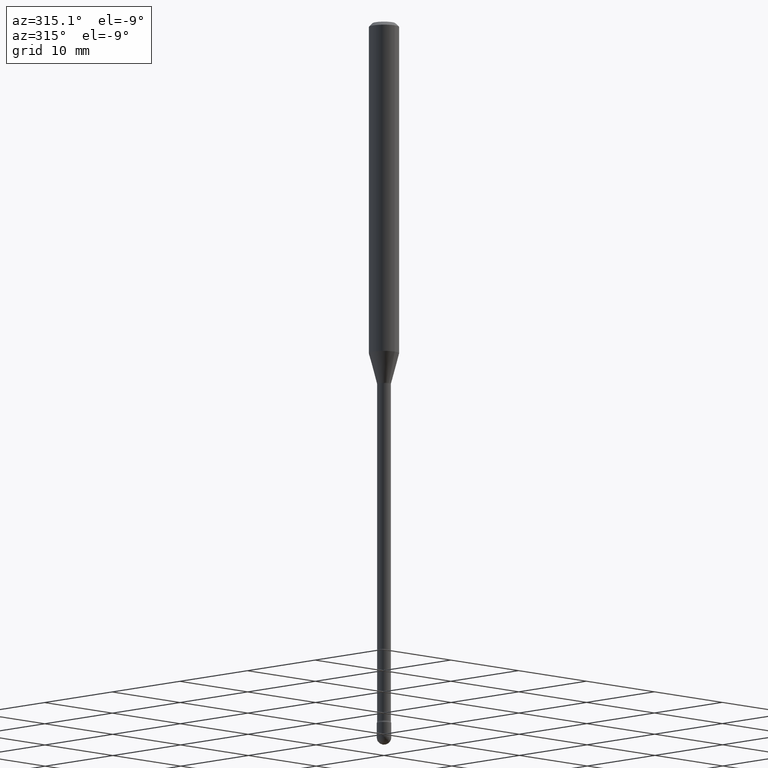
[diagram: clean part render]
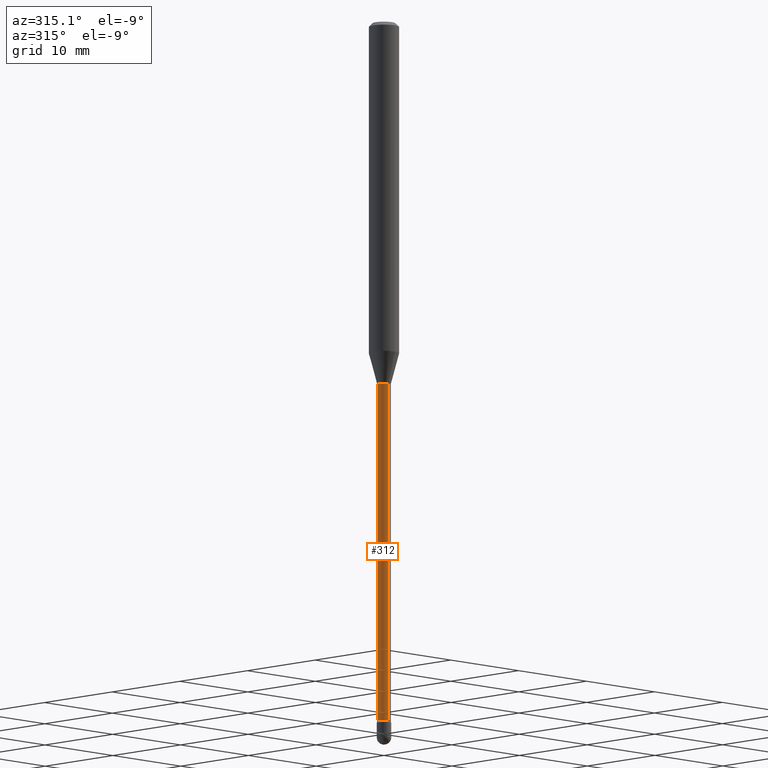
[diagram: same view with one face highlighted and labeled with its STEP entity id]
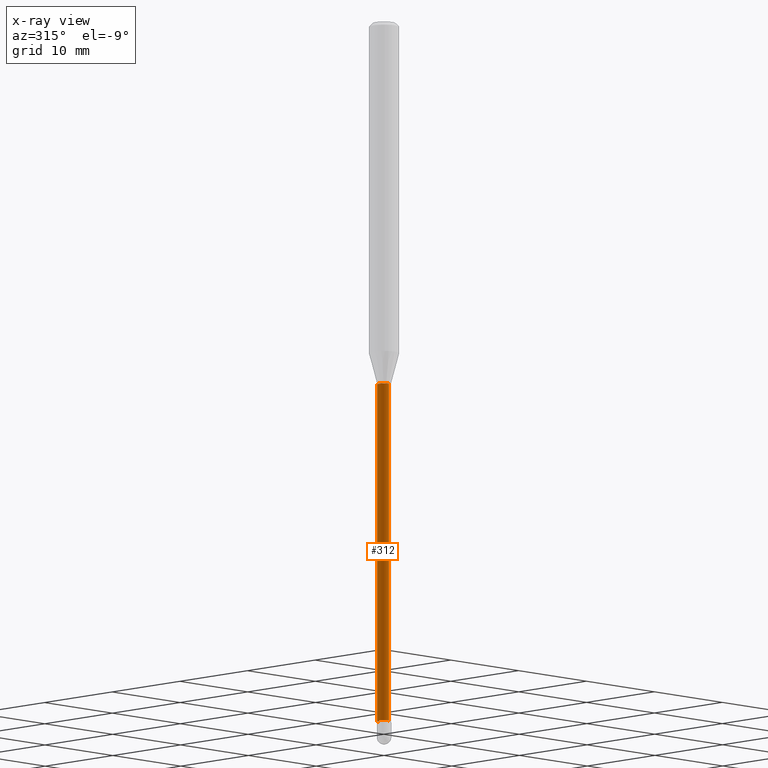
[diagram: x-ray of the same camera — body ghosted, the highlighted face saturated]
A machine part, auxiliary view. The second image highlights one B-rep face of the part: STEP entity #312.
The next image is the same camera in x-ray: the body ghosted, the highlighted face saturated — about 0% of this face is hidden behind the body in this view.
In plain terms, the highlighted cylindrical surface (edge-blend (fillet) strip) has radius 0.7163 mm, axis along (-0, 0, 1).
Its self-contained STEP definition (entity closure, byte-faithful):
#16 = VERTEX_POINT ( 'NONE', #146 ) ;
#26 = LINE ( 'NONE', #475, #496 ) ;
#67 = DIRECTION ( 'NONE',  ( -6.982962677686265133E-15, -1.000000000000000000, 0.000000000000000000 ) ) ;
#108 = VERTEX_POINT ( 'NONE', #311 ) ;
#111 = CARTESIAN_POINT ( 'NONE',  ( 7.098908413975562877E-29, -1.013531065572993230E-14, -2.902875394747778337 ) ) ;
#115 = CARTESIAN_POINT ( 'NONE',  ( -1.969195475107158970E-16, -0.02820000000000523824, -1.501974787463811190 ) ) ;
#124 = DIRECTION ( 'NONE',  ( -2.445474727168702931E-29, 3.491472859657677154E-15, 1.000000000000000000 ) ) ;
#146 = CARTESIAN_POINT ( 'NONE',  ( -1.969195475106832086E-16, -0.02820000000001035220, -2.902875394747778337 ) ) ;
#153 = CIRCLE ( 'NONE', #557, 0.02820000000000021795 ) ;
#166 = EDGE_CURVE ( 'NONE', #344, #16, #153, .T. ) ;
#177 = DIRECTION ( 'NONE',  ( -2.445474727168702931E-29, 3.491472859657677154E-15, 1.000000000000000000 ) ) ;
#211 = CARTESIAN_POINT ( 'NONE',  ( 2.003730514843489875E-16, 0.02820000000000010693, 3.796138642488992175E-16 ) ) ;
#223 = DIRECTION ( 'NONE',  ( -6.982962677686266711E-15, -1.000000000000000000, 3.491472859657679126E-15 ) ) ;
#224 = AXIS2_PLACEMENT_3D ( 'NONE', #546, #177, #223 ) ;
#257 = EDGE_CURVE ( 'NONE', #16, #295, #26, .T. ) ;
#280 = CIRCLE ( 'NONE', #522, 0.02819999999999999243 ) ;
#285 = EDGE_CURVE ( 'NONE', #108, #295, #280, .T. ) ;
#291 = ORIENTED_EDGE ( 'NONE', *, *, #294, .F. ) ;
#294 = EDGE_CURVE ( 'NONE', #344, #108, #508, .T. ) ;
#295 = VERTEX_POINT ( 'NONE', #115 ) ;
#299 = EDGE_LOOP ( 'NONE', ( #291, #493, #552, #342 ) ) ;
#307 = FACE_OUTER_BOUND ( 'NONE', #299, .T. ) ;
#311 = CARTESIAN_POINT ( 'NONE',  ( 2.003730514844198124E-16, 0.02819999999999474663, -1.501974787463811190 ) ) ;
#312 = ADVANCED_FACE ( 'NONE', ( #307 ), #476, .T. ) ;
#342 = ORIENTED_EDGE ( 'NONE', *, *, #285, .F. ) ;
#344 = VERTEX_POINT ( 'NONE', #399 ) ;
#346 = DIRECTION ( 'NONE',  ( -2.445474727168702931E-29, 3.491472859657677154E-15, 1.000000000000000000 ) ) ;
#392 = VECTOR ( 'NONE', #559, 39.37007874015748143 ) ;
#399 = CARTESIAN_POINT ( 'NONE',  ( 2.067679361062608233E-16, 0.02819999999999008716, -2.902875394747778337 ) ) ;
#428 = DIRECTION ( 'NONE',  ( -2.445474727168702931E-29, 3.491472859657677154E-15, 1.000000000000000000 ) ) ;
#430 = CARTESIAN_POINT ( 'NONE',  ( 3.673041383587334427E-29, -5.244104206320004294E-15, -1.501974787463811190 ) ) ;
#475 = CARTESIAN_POINT ( 'NONE',  ( -1.969195475107534665E-16, -0.02820000000000010693, 5.765329335335929582E-16 ) ) ;
#476 = CYLINDRICAL_SURFACE ( 'NONE', #224, 0.02820000000000010693 ) ;
#493 = ORIENTED_EDGE ( 'NONE', *, *, #166, .T. ) ;
#496 = VECTOR ( 'NONE', #346, 39.37007874015748143 ) ;
#508 = LINE ( 'NONE', #211, #392 ) ;
#517 = DIRECTION ( 'NONE',  ( -6.982962677686265133E-15, -1.000000000000000000, 0.000000000000000000 ) ) ;
#522 = AXIS2_PLACEMENT_3D ( 'NONE', #430, #124, #517 ) ;
#546 = CARTESIAN_POINT ( 'NONE',  ( -1.169113584055446105E-44, 1.669184350826100908E-30, 4.780733988912460139E-16 ) ) ;
#552 = ORIENTED_EDGE ( 'NONE', *, *, #257, .T. ) ;
#557 = AXIS2_PLACEMENT_3D ( 'NONE', #111, #428, #67 ) ;
#559 = DIRECTION ( 'NONE',  ( -2.445474727168702931E-29, 3.491472859657677154E-15, 1.000000000000000000 ) ) ;